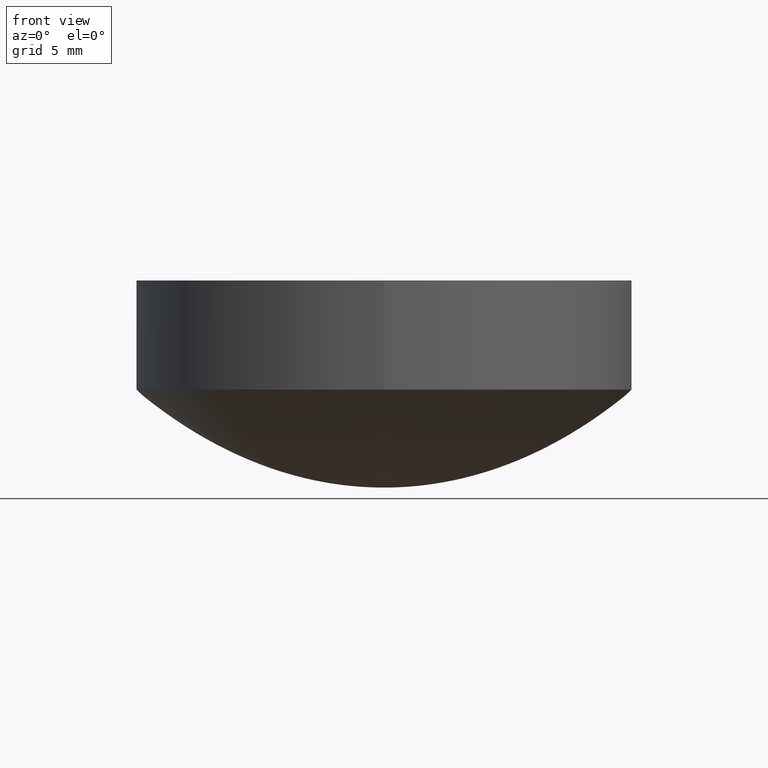
[diagram: clean part render]
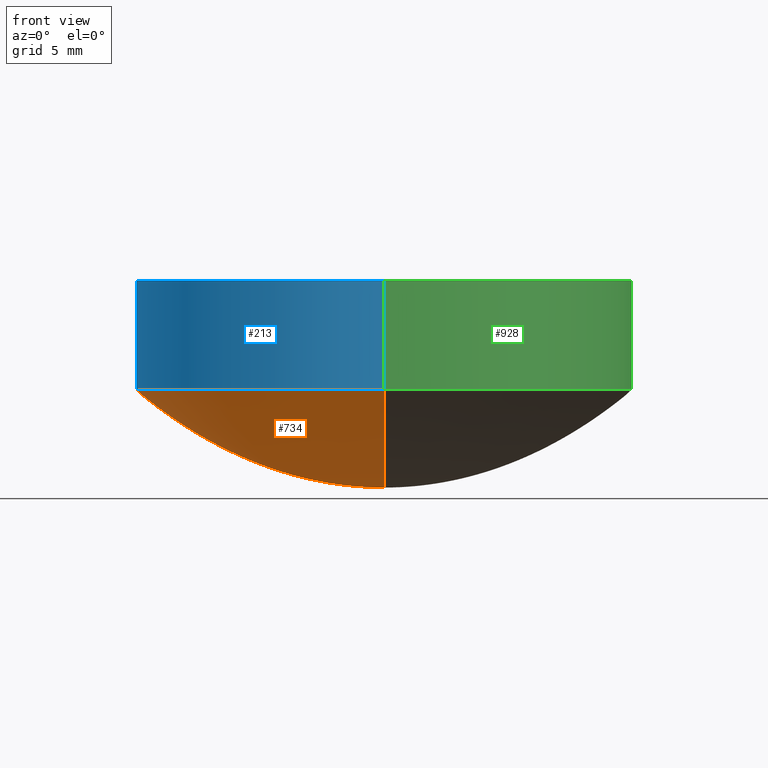
[diagram: same view with three faces highlighted in distinct colors, each labeled with its STEP entity id]
A machine part, front view with three faces highlighted in distinct colors.
Their STEP definitions:

[orange] entity #734 — the highlighted face is a freeform B-spline surface patch.
#1 = CARTESIAN_POINT ( 'NONE',  ( -9.687499999999998224, -4.843749999999999112, 0.5841957991893280688 ) ) ;
#5 = CARTESIAN_POINT ( 'NONE',  ( 0.000000000000000000, 3.906250000000000000, 0.3789155898487329699 ) ) ;
#6 = CARTESIAN_POINT ( 'NONE',  ( 0.000000000000000000, 14.37500000000000000, 5.404119466681040151 ) ) ;
#10 = CARTESIAN_POINT ( 'NONE',  ( -12.81249999999999467, -6.406249999999997335, 1.027049538622569758 ) ) ;
#11 = CARTESIAN_POINT ( 'NONE',  ( -1.817835092484352222E-15, -14.84375000000000000, 5.783048222013719375 ) ) ;
#14 = CARTESIAN_POINT ( 'NONE',  ( -8.228095681771279600E-16, -6.718750000000000000, 1.130971694467530098 ) ) ;
#15 = CARTESIAN_POINT ( 'NONE',  ( 0.000000000000000000, 3.593750000000000000, 0.3204237037430899826 ) ) ;
#21 = CARTESIAN_POINT ( 'NONE',  ( -3.124999999999999556, -1.562499999999999778, 0.05991628856594809899 ) ) ;
#22 = CARTESIAN_POINT ( 'NONE',  ( -1.358592542804094825E-15, -11.09375000000000000, 3.148338256961699777 ) ) ;
#27 = CARTESIAN_POINT ( 'NONE',  ( 0.000000000000000000, 0.000000000000000000, 0.000000000000000000 ) ) ;
#29 = CARTESIAN_POINT ( 'NONE',  ( 0.000000000000000000, 13.90625000000000000, 5.039825773088820071 ) ) ;
#35 = CARTESIAN_POINT ( 'NONE',  ( -5.312500000000000000, 2.656250000000000000, 0.1745099211040110065 ) ) ;
#36 = CARTESIAN_POINT ( 'NONE',  ( 0.000000000000000000, 12.81250000000000000, 4.245381271204740514 ) ) ;
#39 = CARTESIAN_POINT ( 'NONE',  ( -24.06249999999998934, -12.03124999999999467, 3.724266490961300136 ) ) ;
#44 = CARTESIAN_POINT ( 'NONE',  ( 0.000000000000000000, 2.500000000000000000, 0.1544825556000629929 ) ) ;
#45 = CARTESIAN_POINT ( 'NONE',  ( 0.000000000000000000, 11.56250000000000000, 3.429657426633299977 ) ) ;
#51 = CARTESIAN_POINT ( 'NONE',  ( -14.37500000000000000, -7.187499999999998224, 1.296588552126309857 ) ) ;
#52 = CARTESIAN_POINT ( 'NONE',  ( -1.760429773774320121E-15, -14.37500000000000000, 5.404119466681040151 ) ) ;
#53 = CARTESIAN_POINT ( 'NONE',  ( -9.567553118338697255E-16, -7.812500000000000000, 1.535767496166519974 ) ) ;
#54 = CARTESIAN_POINT ( 'NONE',  ( 0.000000000000000000, 9.687500000000000000, 2.382193981824380025 ) ) ;
#55 = CARTESIAN_POINT ( 'NONE',  ( -1.358592542804094825E-15, -11.09375000000000000, 3.148338256961699777 ) ) ;
#56 = CARTESIAN_POINT ( 'NONE',  ( -19.37499999999999645, -9.687499999999998224, 2.382193981824380025 ) ) ;
#58 = ORIENTED_EDGE ( 'NONE', *, *, #955, .F. ) ;
#62 = CARTESIAN_POINT ( 'NONE',  ( -2.678914873134835310E-16, -2.187500000000000000, 0.1180878847321280012 ) ) ;
#64 = CARTESIAN_POINT ( 'NONE',  ( -14.68749999999999822, 7.343750000000000000, 1.354404919990950029 ) ) ;
#66 = CARTESIAN_POINT ( 'NONE',  ( 0.000000000000000000, 13.43750000000000000, 4.689925512592259871 ) ) ;
#69 = CARTESIAN_POINT ( 'NONE',  ( -9.950255243072246565E-16, -8.125000000000000000, 1.663313903924069859 ) ) ;
#71 = CARTESIAN_POINT ( 'NONE',  ( -1.052430843017256757E-15, -8.593750000000000000, 1.864680354000979756 ) ) ;
#78 = CARTESIAN_POINT ( 'NONE',  ( -7.187499999999998224, 3.593750000000000000, 0.3204237037430899826 ) ) ;
#80 = CARTESIAN_POINT ( 'NONE',  ( 0.000000000000000000, 12.81250000000000000, 4.245381271204740514 ) ) ;
#85 = CARTESIAN_POINT ( 'NONE',  ( -6.249999999999999112, -3.124999999999999556, 0.2419397072312180208 ) ) ;
#86 = CARTESIAN_POINT ( 'NONE',  ( 0.000000000000000000, 3.125000000000000000, 0.2419397072312180208 ) ) ;
#90 = CARTESIAN_POINT ( 'NONE',  ( -10.93749999999999822, -5.468749999999998224, 0.7461025201455739886 ) ) ;
#93 = CARTESIAN_POINT ( 'NONE',  ( -4.401074434435800303E-16, -3.593750000000000000, 0.3204237037430899826 ) ) ;
#99 = CARTESIAN_POINT ( 'NONE',  ( 0.000000000000000000, 4.375000000000000000, 0.4759476878725200089 ) ) ;
#104 = CARTESIAN_POINT ( 'NONE',  ( -3.635670184968705134E-16, -2.968750000000000000, 0.2182384972824339964 ) ) ;
#106 = FACE_OUTER_BOUND ( 'NONE', #226, .T. ) ;
#110 = CARTESIAN_POINT ( 'NONE',  ( -1.249999999999999778, -0.6249999999999998890, 0.009073437160893050787 ) ) ;
#112 = CARTESIAN_POINT ( 'NONE',  ( 0.000000000000000000, 13.75000000000000000, 4.921610680584799447 ) ) ;
#116 = CARTESIAN_POINT ( 'NONE',  ( -1.741294667537642754E-15, -14.21875000000000000, 5.281080162096809971 ) ) ;
#121 = CARTESIAN_POINT ( 'NONE',  ( 0.000000000000000000, 11.40625000000000000, 3.334422507651929823 ) ) ;
#125 = CARTESIAN_POINT ( 'NONE',  ( -4.062499999999999112, 2.031250000000000000, 0.1017205799872320099 ) ) ;
#126 = CARTESIAN_POINT ( 'NONE',  ( 0.000000000000000000, 12.34375000000000000, 3.928162119119019913 ) ) ;
#129 = CARTESIAN_POINT ( 'NONE',  ( -8.802148868871600606E-16, -7.187500000000000000, 1.296588552126309857 ) ) ;
#130 = CARTESIAN_POINT ( 'NONE',  ( 0.000000000000000000, 8.593750000000000000, 1.864680354000979756 ) ) ;
#132 = CARTESIAN_POINT ( 'NONE',  ( -1.243781905384030821E-15, -10.15625000000000000, 2.624790582178630149 ) ) ;
#133 = CARTESIAN_POINT ( 'NONE',  ( -1.282052117857385357E-15, -10.46875000000000000, 2.793584604150720185 ) ) ;
#134 = CARTESIAN_POINT ( 'NONE',  ( 0.000000000000000000, 13.75000000000000000, 4.921610680584799447 ) ) ;
#135 = CARTESIAN_POINT ( 'NONE',  ( -1.626484030117578356E-15, -13.28125000000000000, 4.576455430452989859 ) ) ;
#136 = CARTESIAN_POINT ( 'NONE',  ( -8.993499931238374275E-16, -7.343750000000000000, 1.354404919990950029 ) ) ;
#138 = CARTESIAN_POINT ( 'NONE',  ( 0.000000000000000000, 14.84375000000000000, 5.783048222013719375 ) ) ;
#141 = CARTESIAN_POINT ( 'NONE',  ( -3.827021247335478803E-16, -3.125000000000000000, 0.2419397072312180208 ) ) ;
#142 = CARTESIAN_POINT ( 'NONE',  ( -17.18749999999999645, -8.593749999999998224, 1.864680354000979978 ) ) ;
#149 = CARTESIAN_POINT ( 'NONE',  ( -1.282052117857385357E-15, -10.46875000000000000, 2.793584604150720185 ) ) ;
#151 = CARTESIAN_POINT ( 'NONE',  ( 0.000000000000000000, 9.062500000000000000, 2.078235659220740050 ) ) ;
#153 = CARTESIAN_POINT ( 'NONE',  ( 0.000000000000000000, 13.90625000000000000, 5.039825773088820071 ) ) ;
#157 = CARTESIAN_POINT ( 'NONE',  ( -7.845393557037731275E-16, -6.406250000000000000, 1.027049538622569980 ) ) ;
#162 = CARTESIAN_POINT ( 'NONE',  ( -6.874999999999997335, 3.437499999999999556, 0.2930323108724959824 ) ) ;
#163 = CARTESIAN_POINT ( 'NONE',  ( -29.37499999999999645, -14.68749999999999822, 5.655103491778290525 ) ) ;
#168 = CARTESIAN_POINT ( 'NONE',  ( -4.209723372069026634E-16, -3.437500000000000000, 0.2930323108724959824 ) ) ;
#169 = CARTESIAN_POINT ( 'NONE',  ( 0.000000000000000000, 4.531250000000000000, 0.5107788002609389144 ) ) ;
#172 = CARTESIAN_POINT ( 'NONE',  ( 0.000000000000000000, 5.468750000000000000, 0.7461025201455739886 ) ) ;
#174 = CARTESIAN_POINT ( 'NONE',  ( 0.000000000000000000, 4.843750000000000000, 0.5841957991893280688 ) ) ;
#177 = CARTESIAN_POINT ( 'NONE',  ( -7.654042494670957853E-17, -0.6250000000000000000, 0.009073437160893050787 ) ) ;
#179 = CARTESIAN_POINT ( 'NONE',  ( 0.000000000000000000, 5.312500000000000000, 0.7037350457089810440 ) ) ;
#180 = CARTESIAN_POINT ( 'NONE',  ( 0.000000000000000000, 2.656250000000000000, 0.1745099211040110065 ) ) ;
#183 = EDGE_CURVE ( 'NONE', #960, #703, #606, .T. ) ;
#185 = CARTESIAN_POINT ( 'NONE',  ( -0.6249999999999998890, 0.3125000000000000000, 0.001814438714157010036 ) ) ;
#190 = CARTESIAN_POINT ( 'NONE',  ( -1.562499999999999778, 0.7812500000000002220, 0.01451799676346220147 ) ) ;
#191 = CARTESIAN_POINT ( 'NONE',  ( -27.49999999999998934, 13.74999999999999822, 4.921610680584799447 ) ) ;
#194 = DIRECTION ( 'NONE',  ( 0.000000000000000000, 0.000000000000000000, 1.000000000000000000 ) ) ;
#195 = CARTESIAN_POINT ( 'NONE',  ( -25.62499999999998934, 12.81249999999999822, 4.245381271204740514 ) ) ;
#202 = CARTESIAN_POINT ( 'NONE',  ( 0.000000000000000000, 12.03125000000000000, 3.724266490961300136 ) ) ;
#203 = CIRCLE ( 'NONE', #813, 15.00000000000000000 ) ;
#206 = CARTESIAN_POINT ( 'NONE',  ( -1.339457436567417655E-16, -1.093750000000000000, 0.02904096944840869887 ) ) ;
#207 = CARTESIAN_POINT ( 'NONE',  ( -21.87499999999999645, -10.93749999999999645, 3.057488923424939831 ) ) ;
#210 = CARTESIAN_POINT ( 'NONE',  ( -3.252968060235156810E-16, -2.656250000000000000, 0.1745099211040110065 ) ) ;
#211 = CARTESIAN_POINT ( 'NONE',  ( -1.588213817644223622E-15, -12.96875000000000000, 4.354183312459039890 ) ) ;
#214 = CARTESIAN_POINT ( 'NONE',  ( -1.683889348827610654E-15, -13.75000000000000000, 4.921610680584799447 ) ) ;
#215 = CARTESIAN_POINT ( 'NONE',  ( -1.224646799147353256E-15, -10.00000000000000000, 2.542524052966009585 ) ) ;
#217 = CARTESIAN_POINT ( 'NONE',  ( 0.000000000000000000, 13.28125000000000000, 4.576455430452989859 ) ) ;
#218 = CARTESIAN_POINT ( 'NONE',  ( -8.228095681771279600E-16, -6.718750000000000000, 1.130971694467530098 ) ) ;
#219 = CARTESIAN_POINT ( 'NONE',  ( -15.62499999999999822, -7.812499999999999112, 1.535767496166519974 ) ) ;
#220 = CARTESIAN_POINT ( 'NONE',  ( 0.000000000000000000, 6.406250000000000000, 1.027049538622569980 ) ) ;
#223 = CARTESIAN_POINT ( 'NONE',  ( -4.975127621536123282E-16, -4.062500000000000000, 0.4100160821757170559 ) ) ;
#224 = CARTESIAN_POINT ( 'NONE',  ( -13.43749999999999645, 6.718750000000000000, 1.130971694467529876 ) ) ;
#226 = EDGE_LOOP ( 'NONE', ( #58, #1068, #1053 ) ) ;
#230 = CARTESIAN_POINT ( 'NONE',  ( -1.014160630543902023E-15, -8.281250000000000000, 1.729087207217520072 ) ) ;
#232 = CARTESIAN_POINT ( 'NONE',  ( -19.06249999999999645, 9.531250000000000000, 2.304130439600900360 ) ) ;
#234 = CARTESIAN_POINT ( 'NONE',  ( 0.000000000000000000, 7.656250000000000000, 1.473994392457079750 ) ) ;
#238 = CARTESIAN_POINT ( 'NONE',  ( 0.000000000000000000, 7.812500000000000000, 1.535767496166519974 ) ) ;
#245 = CARTESIAN_POINT ( 'NONE',  ( 0.000000000000000000, 6.406250000000000000, 1.027049538622569980 ) ) ;
#246 = CARTESIAN_POINT ( 'NONE',  ( 0.000000000000000000, 1.718750000000000000, 0.07263478165185099922 ) ) ;
#250 = CARTESIAN_POINT ( 'NONE',  ( -6.874999999999997335, -3.437499999999998668, 0.2930323108724959824 ) ) ;
#251 = CARTESIAN_POINT ( 'NONE',  ( -1.798699986247674855E-15, -14.68750000000000000, 5.655103491778289637 ) ) ;
#255 = CARTESIAN_POINT ( 'NONE',  ( -7.271340369937410268E-16, -5.937500000000000000, 0.8808271430678310532 ) ) ;
#256 = CARTESIAN_POINT ( 'NONE',  ( 0.000000000000000000, 2.500000000000000000, 0.1544825556000629929 ) ) ;
#260 = CARTESIAN_POINT ( 'NONE',  ( -12.81249999999999467, 6.406249999999999112, 1.027049538622569758 ) ) ;
#261 = CARTESIAN_POINT ( 'NONE',  ( -28.43749999999999645, 14.21875000000000000, 5.281080162096809971 ) ) ;
#265 = CARTESIAN_POINT ( 'NONE',  ( -7.812499999999999112, -3.906249999999999556, 0.3789155898487330254 ) ) ;
#266 = CARTESIAN_POINT ( 'NONE',  ( 0.000000000000000000, 0.1562500000000000000, 0.000000000000000000 ) ) ;
#271 = CARTESIAN_POINT ( 'NONE',  ( -2.187500000000000000, 1.093750000000000222, 0.02904096944840870234 ) ) ;
#272 = CARTESIAN_POINT ( 'NONE',  ( -23.74999999999999289, -11.87499999999999645, 3.624579417023470196 ) ) ;
#275 = CARTESIAN_POINT ( 'NONE',  ( 0.000000000000000000, 0.3125000000000000000, 0.001814438714157010036 ) ) ;
#276 = CARTESIAN_POINT ( 'NONE',  ( -1.396862755277449756E-15, -11.40625000000000000, 3.334422507651929823 ) ) ;
#280 = CARTESIAN_POINT ( 'NONE',  ( -2.487563810768061641E-16, -2.031250000000000000, 0.1017205799872320099 ) ) ;
#281 = CARTESIAN_POINT ( 'NONE',  ( -1.626484030117578356E-15, -13.28125000000000000, 4.576455430452989859 ) ) ;
#285 = CARTESIAN_POINT ( 'NONE',  ( -3.061616997868383141E-16, -2.500000000000000000, 0.1544825556000629929 ) ) ;
#287 = CARTESIAN_POINT ( 'NONE',  ( 0.000000000000000000, 13.43750000000000000, 4.689925512592259871 ) ) ;
#292 = CARTESIAN_POINT ( 'NONE',  ( -1.186376586673998523E-15, -9.687500000000000000, 2.382193981824380025 ) ) ;
#293 = CARTESIAN_POINT ( 'NONE',  ( -25.62499999999998934, -12.81249999999999467, 4.245381271204740514 ) ) ;
#295 = CARTESIAN_POINT ( 'NONE',  ( -1.396862755277449756E-15, -11.40625000000000000, 3.334422507651929823 ) ) ;
#296 = CARTESIAN_POINT ( 'NONE',  ( -17.18749999999999645, 8.593750000000000000, 1.864680354000979978 ) ) ;
#298 = CARTESIAN_POINT ( 'NONE',  ( 0.000000000000000000, 11.56250000000000000, 3.429657426633299977 ) ) ;
#299 = CARTESIAN_POINT ( 'NONE',  ( -1.052430843017256757E-15, -8.593750000000000000, 1.864680354000979756 ) ) ;
#300 = CARTESIAN_POINT ( 'NONE',  ( -1.128971267963966225E-15, -9.218750000000000000, 2.152151278271710044 ) ) ;
#302 = CARTESIAN_POINT ( 'NONE',  ( 0.000000000000000000, 7.187500000000000000, 1.296588552126309857 ) ) ;
#304 = CARTESIAN_POINT ( 'NONE',  ( -1.167241480437320959E-15, -9.531250000000000000, 2.304130439600899916 ) ) ;
#305 = CARTESIAN_POINT ( 'NONE',  ( -20.93749999999999645, -10.46874999999999822, 2.793584604150720629 ) ) ;
#307 = CARTESIAN_POINT ( 'NONE',  ( 0.000000000000000000, 10.62500000000000000, 2.880112097631259971 ) ) ;
#310 = CARTESIAN_POINT ( 'NONE',  ( -7.654042494670957606E-16, -6.250000000000000000, 0.9770276282365498721 ) ) ;
#311 = CARTESIAN_POINT ( 'NONE',  ( -1.109836161727288661E-15, -9.062500000000000000, 2.078235659220740050 ) ) ;
#318 = CARTESIAN_POINT ( 'NONE',  ( -16.24999999999999645, 8.125000000000000000, 1.663313903924069859 ) ) ;
#319 = CARTESIAN_POINT ( 'NONE',  ( 0.000000000000000000, 9.062500000000000000, 2.078235659220740050 ) ) ;
#325 = CARTESIAN_POINT ( 'NONE',  ( -7.187500000000000000, -3.593749999999999112, 0.3204237037430899826 ) ) ;
#327 = CARTESIAN_POINT ( 'NONE',  ( -29.68749999999999289, -14.84374999999999467, 5.783048222013719375 ) ) ;
#332 = CARTESIAN_POINT ( 'NONE',  ( -5.931882933369992613E-16, -4.843750000000000000, 0.5841957991893280688 ) ) ;
#333 = CARTESIAN_POINT ( 'NONE',  ( 0.000000000000000000, 15.00000000000000000, 5.913487138830709533 ) ) ;
#336 = CARTESIAN_POINT ( 'NONE',  ( -10.93749999999999822, 5.468750000000000000, 0.7461025201455739886 ) ) ;
#337 = CARTESIAN_POINT ( 'NONE',  ( -28.75000000000000000, -14.37499999999999645, 5.404119466681040151 ) ) ;
#344 = CARTESIAN_POINT ( 'NONE',  ( 0.000000000000000000, 5.781250000000000000, 0.8346485693713959764 ) ) ;
#345 = CARTESIAN_POINT ( 'NONE',  ( 0.000000000000000000, 14.21875000000000000, 5.281080162096809971 ) ) ;
#350 = CARTESIAN_POINT ( 'NONE',  ( -8.124999999999998224, 4.062500000000000000, 0.4100160821757170559 ) ) ;
#351 = CARTESIAN_POINT ( 'NONE',  ( 0.000000000000000000, 0.3125000000000000000, 0.001814438714157010036 ) ) ;
#355 = CARTESIAN_POINT ( 'NONE',  ( -1.562499999999999778, -0.7812499999999998890, 0.01451799676346220147 ) ) ;
#356 = CARTESIAN_POINT ( 'NONE',  ( 0.000000000000000000, 12.96875000000000000, 4.354183312459039890 ) ) ;
#362 = CARTESIAN_POINT ( 'NONE',  ( 0.000000000000000000, 0.000000000000000000, 0.000000000000000000 ) ) ;
#363 = CARTESIAN_POINT ( 'NONE',  ( -23.12499999999999645, 11.56250000000000000, 3.429657426633299533 ) ) ;
#366 = CARTESIAN_POINT ( 'NONE',  ( 0.000000000000000000, 2.031250000000000000, 0.1017205799872320099 ) ) ;
#367 = CARTESIAN_POINT ( 'NONE',  ( -1.569078711407546255E-15, -12.81250000000000000, 4.245381271204740514 ) ) ;
#373 = CARTESIAN_POINT ( 'NONE',  ( 0.000000000000000000, 10.93750000000000000, 3.057488923424939831 ) ) ;
#375 = CARTESIAN_POINT ( 'NONE',  ( -2.678914873134835310E-16, -2.187500000000000000, 0.1180878847321280012 ) ) ;
#378 = CARTESIAN_POINT ( 'NONE',  ( 0.000000000000000000, 10.62500000000000000, 2.880112097631259971 ) ) ;
#381 = CARTESIAN_POINT ( 'NONE',  ( -4.401074434435800303E-16, -3.593750000000000000, 0.3204237037430899826 ) ) ;
#382 = CARTESIAN_POINT ( 'NONE',  ( 0.000000000000000000, 8.750000000000000000, 1.934500196912620096 ) ) ;
#383 = CARTESIAN_POINT ( 'NONE',  ( -1.511673392697514154E-15, -12.34375000000000000, 3.928162119119019913 ) ) ;
#384 = CARTESIAN_POINT ( 'NONE',  ( -8.802148868871600606E-16, -7.187500000000000000, 1.296588552126309857 ) ) ;
#386 = CARTESIAN_POINT ( 'NONE',  ( 0.000000000000000000, 8.281250000000000000, 1.729087207217520072 ) ) ;
#388 = CARTESIAN_POINT ( 'NONE',  ( -7.845393557037731275E-16, -6.406250000000000000, 1.027049538622569980 ) ) ;
#389 = CARTESIAN_POINT ( 'NONE',  ( 0.000000000000000000, 6.718750000000000000, 1.130971694467530098 ) ) ;
#397 = CARTESIAN_POINT ( 'NONE',  ( -1.109836161727288661E-15, -9.062500000000000000, 2.078235659220740050 ) ) ;
#398 = CARTESIAN_POINT ( 'NONE',  ( -20.31250000000000000, 10.15625000000000000, 2.624790582178630149 ) ) ;
#400 = CARTESIAN_POINT ( 'NONE',  ( 0.000000000000000000, 12.34375000000000000, 3.928162119119019913 ) ) ;
#403 = CARTESIAN_POINT ( 'NONE',  ( -1.817835092484352222E-15, -14.84375000000000000, 5.783048222013719375 ) ) ;
#404 = CARTESIAN_POINT ( 'NONE',  ( -9.376202055971923586E-16, -7.656250000000000000, 1.473994392457079750 ) ) ;
#411 = CARTESIAN_POINT ( 'NONE',  ( -7.079989307570635613E-16, -5.781250000000000000, 0.8346485693713959764 ) ) ;
#413 = CARTESIAN_POINT ( 'NONE',  ( 0.000000000000000000, 11.87500000000000000, 3.624579417023469752 ) ) ;
#418 = CARTESIAN_POINT ( 'NONE',  ( -3.827021247335478803E-16, -3.125000000000000000, 0.2419397072312180208 ) ) ;
#419 = CARTESIAN_POINT ( 'NONE',  ( 0.000000000000000000, 2.968750000000000000, 0.2182384972824339964 ) ) ;
#422 = CARTESIAN_POINT ( 'NONE',  ( -8.124999999999998224, -4.062499999999999112, 0.4100160821757170559 ) ) ;
#423 = CARTESIAN_POINT ( 'NONE',  ( 0.000000000000000000, 0.000000000000000000, 0.000000000000000000 ) ) ;
#426 = CARTESIAN_POINT ( 'NONE',  ( 0.000000000000000000, 3.125000000000000000, 0.2419397072312180208 ) ) ;
#427 = CARTESIAN_POINT ( 'NONE',  ( -1.836970198721029589E-15, -15.00000000000000000, 5.913487138830709533 ) ) ;
#430 = CARTESIAN_POINT ( 'NONE',  ( 0.000000000000000000, 4.062500000000000000, 0.4100160821757170559 ) ) ;
#434 = CARTESIAN_POINT ( 'NONE',  ( -0.3124999999999999445, 0.1562500000000000000, 0.000000000000000000 ) ) ;
#435 = CARTESIAN_POINT ( 'NONE',  ( -1.703024455064288218E-15, -13.90625000000000000, 5.039825773088820071 ) ) ;
#438 = CARTESIAN_POINT ( 'NONE',  ( -0.3124999999999999445, -0.1562499999999999722, 0.000000000000000000 ) ) ;
#439 = CARTESIAN_POINT ( 'NONE',  ( -26.56249999999998934, 13.28124999999999822, 4.576455430452990747 ) ) ;
#442 = CARTESIAN_POINT ( 'NONE',  ( -4.999999999999999112, -2.499999999999999556, 0.1544825556000629929 ) ) ;
#443 = CARTESIAN_POINT ( 'NONE',  ( -24.99999999999999645, -12.49999999999999822, 4.032370676684720046 ) ) ;
#448 = CARTESIAN_POINT ( 'NONE',  ( 0.000000000000000000, 13.28125000000000000, 4.576455430452989859 ) ) ;
#453 = CARTESIAN_POINT ( 'NONE',  ( -9.567553118338697008E-17, -0.7812500000000000000, 0.01451799676346219974 ) ) ;
#454 = CARTESIAN_POINT ( 'NONE',  ( -21.25000000000000000, -10.62499999999999822, 2.880112097631259971 ) ) ;
#456 = VERTEX_POINT ( 'NONE', #666 ) ;
#457 = CARTESIAN_POINT ( 'NONE',  ( -1.645619136354255920E-15, -13.43750000000000000, 4.689925512592259871 ) ) ;
#460 = CARTESIAN_POINT ( 'NONE',  ( -14.37499999999999645, 7.187500000000000000, 1.296588552126309857 ) ) ;
#463 = CARTESIAN_POINT ( 'NONE',  ( -1.014160630543902023E-15, -8.281250000000000000, 1.729087207217520072 ) ) ;
#465 = CARTESIAN_POINT ( 'NONE',  ( 0.000000000000000000, 8.750000000000000000, 1.934500196912620096 ) ) ;
#466 = CARTESIAN_POINT ( 'NONE',  ( -1.415997861514127123E-15, -11.56250000000000000, 3.429657426633299977 ) ) ;
#467 = CARTESIAN_POINT ( 'NONE',  ( -13.74999999999999467, -6.874999999999997335, 1.184871938868480079 ) ) ;
#472 = CARTESIAN_POINT ( 'NONE',  ( -5.357829746269670620E-16, -4.375000000000000000, 0.4759476878725200089 ) ) ;
#474 = CARTESIAN_POINT ( 'NONE',  ( 0.000000000000000000, 8.281250000000000000, 1.729087207217520072 ) ) ;
#480 = CARTESIAN_POINT ( 'NONE',  ( -1.741294667537642754E-15, -14.21875000000000000, 5.281080162096809971 ) ) ;
#482 = CARTESIAN_POINT ( 'NONE',  ( 0.000000000000000000, 7.187500000000000000, 1.296588552126309857 ) ) ;
#489 = CARTESIAN_POINT ( 'NONE',  ( 0.000000000000000000, 3.437500000000000000, 0.2930323108724959824 ) ) ;
#495 = CARTESIAN_POINT ( 'NONE',  ( 0.000000000000000000, 5.000000000000000000, 0.6227816846932039407 ) ) ;
#496 = CARTESIAN_POINT ( 'NONE',  ( 0.000000000000000000, 0.6250000000000000000, 0.009073437160893050787 ) ) ;
#501 = CARTESIAN_POINT ( 'NONE',  ( -5.937499999999998224, 2.968750000000000000, 0.2182384972824339686 ) ) ;
#502 = CARTESIAN_POINT ( 'NONE',  ( 0.000000000000000000, 0.7812500000000000000, 0.01451799676346219974 ) ) ;
#505 = CARTESIAN_POINT ( 'NONE',  ( -8.750000000000000000, 4.375000000000000888, 0.4759476878725200089 ) ) ;
#506 = CARTESIAN_POINT ( 'NONE',  ( 0.000000000000000000, 1.093750000000000000, 0.02904096944840869887 ) ) ;
#510 = CARTESIAN_POINT ( 'NONE',  ( -8.750000000000000000, -4.375000000000000000, 0.4759476878725200089 ) ) ;
#511 = CARTESIAN_POINT ( 'NONE',  ( 0.000000000000000000, 0.000000000000000000, 0.000000000000000000 ) ) ;
#515 = CARTESIAN_POINT ( 'NONE',  ( -3.827021247335478926E-17, -0.3125000000000000000, 0.001814438714157010036 ) ) ;
#522 = CARTESIAN_POINT ( 'NONE',  ( 0.000000000000000000, 2.187500000000000000, 0.1180878847321280012 ) ) ;
#525 = CARTESIAN_POINT ( 'NONE',  ( -27.81249999999999289, -13.90624999999999645, 5.039825773088820071 ) ) ;
#528 = DIRECTION ( 'NONE',  ( 0.000000000000000000, 1.000000000000000000, 0.000000000000000000 ) ) ;
#529 = CARTESIAN_POINT ( 'NONE',  ( -23.12499999999999645, -11.56249999999999645, 3.429657426633299533 ) ) ;
#534 = CARTESIAN_POINT ( 'NONE',  ( -2.187500000000000000, -1.093750000000000000, 0.02904096944840870234 ) ) ;
#535 = CARTESIAN_POINT ( 'NONE',  ( -28.43749999999999645, -14.21874999999999822, 5.281080162096809971 ) ) ;
#538 = CARTESIAN_POINT ( 'NONE',  ( -4.999999999999999112, 2.500000000000000000, 0.1544825556000629929 ) ) ;
#539 = CARTESIAN_POINT ( 'NONE',  ( -24.68749999999999645, -12.34374999999999822, 3.928162119119019913 ) ) ;
#542 = CARTESIAN_POINT ( 'NONE',  ( 1.836970198721029589E-15, -15.00000000000000000, 5.913487138830709533 ) ) ;
#543 = CARTESIAN_POINT ( 'NONE',  ( -22.81249999999999289, 11.40625000000000000, 3.334422507651929823 ) ) ;
#544 = CARTESIAN_POINT ( 'NONE',  ( -1.339457436567417655E-16, -1.093750000000000000, 0.02904096944840869887 ) ) ;
#545 = CARTESIAN_POINT ( 'NONE',  ( -16.56249999999999645, -8.281249999999998224, 1.729087207217519850 ) ) ;
#548 = CARTESIAN_POINT ( 'NONE',  ( -1.588213817644223622E-15, -12.96875000000000000, 4.354183312459039890 ) ) ;
#549 = CARTESIAN_POINT ( 'NONE',  ( 0.000000000000000000, 10.00000000000000000, 2.542524052966009585 ) ) ;
#553 = CARTESIAN_POINT ( 'NONE',  ( -1.798699986247674855E-15, -14.68750000000000000, 5.655103491778289637 ) ) ;
#554 = CARTESIAN_POINT ( 'NONE',  ( -1.071565949253934124E-15, -8.750000000000000000, 1.934500196912620096 ) ) ;
#560 = CARTESIAN_POINT ( 'NONE',  ( -1.569078711407546255E-15, -12.81250000000000000, 4.245381271204740514 ) ) ;
#562 = CARTESIAN_POINT ( 'NONE',  ( -14.68749999999999822, -7.343749999999999112, 1.354404919990950029 ) ) ;
#564 = CARTESIAN_POINT ( 'NONE',  ( 0.000000000000000000, 7.343750000000000000, 1.354404919990950029 ) ) ;
#568 = CARTESIAN_POINT ( 'NONE',  ( -19.99999999999999645, 10.00000000000000000, 2.542524052966009585 ) ) ;
#574 = CARTESIAN_POINT ( 'NONE',  ( 0.000000000000000000, 6.250000000000000000, 0.9770276282365498721 ) ) ;
#579 = CARTESIAN_POINT ( 'NONE',  ( -6.505936120470313620E-16, -5.312500000000000000, 0.7037350457089810440 ) ) ;
#580 = CARTESIAN_POINT ( 'NONE',  ( 0.000000000000000000, 5.937500000000000000, 0.8808271430678310532 ) ) ;
#584 = CARTESIAN_POINT ( 'NONE',  ( -3.827021247335478926E-17, -0.3125000000000000000, 0.001814438714157010036 ) ) ;
#585 = CARTESIAN_POINT ( 'NONE',  ( -10.62500000000000000, 5.312500000000000000, 0.7037350457089809330 ) ) ;
#590 = CARTESIAN_POINT ( 'NONE',  ( -11.87499999999999645, -5.937499999999998224, 0.8808271430678311642 ) ) ;
#591 = CARTESIAN_POINT ( 'NONE',  ( 0.000000000000000000, 3.437500000000000000, 0.2930323108724959824 ) ) ;
#595 = CARTESIAN_POINT ( 'NONE',  ( 0.000000000000000000, 0.6250000000000000000, 0.009073437160893050787 ) ) ;
#597 = CARTESIAN_POINT ( 'NONE',  ( 0.000000000000000000, 2.187500000000000000, 0.1180878847321280012 ) ) ;
#602 = CARTESIAN_POINT ( 'NONE',  ( -4.375000000000000000, 2.187500000000000444, 0.1180878847321280012 ) ) ;
#603 = CARTESIAN_POINT ( 'NONE',  ( -26.87499999999999289, -13.43749999999999645, 4.689925512592259871 ) ) ;
#606 = B_SPLINE_CURVE_WITH_KNOTS ( 'NONE', 3,
 ( #802, #138, #729, #827, #900, #153, #134, #66, #217, #630, #80, #741, #400, #885, #413, #298, #647, #1062, #1074, #307, #641, #882, #976, #54, #988, #735, #319, #465, #654, #386, #1057, #982, #234, #564, #302, #636, #970, #220, #931, #580, #997, #1012, #849, #1008, #174, #169, #1018, #660, #1002, #15, #591, #86, #419, #180, #256, #597, #834, #246, #839, #936, #506, #502, #496, #351, #266, #511 ),
 .UNSPECIFIED., .F., .F.,
 ( 4, 2, 2, 2, 2, 2, 2, 2, 2, 2, 2, 2, 2, 2, 2, 2, 2, 2, 2, 2, 2, 2, 2, 2, 2, 2, 2, 2, 2, 2, 2, 2, 4 ),
 ( -1.000000000000000000, -0.9687500000000000000, -0.9375000000000000000, -0.9062500000000000000, -0.8750000000000000000, -0.8437500000000000000, -0.8125000000000000000, -0.7812500000000000000, -0.7500000000000000000, -0.7187500000000000000, -0.6875000000000000000, -0.6562500000000000000, -0.6250000000000000000, -0.5937500000000000000, -0.5625000000000000000, -0.5312500000000000000, -0.5000000000000000000, -0.4687500000000000000, -0.4375000000000000000, -0.4062500000000000000, -0.3750000000000000000, -0.3437500000000000000, -0.3125000000000000000, -0.2812500000000000000, -0.2500000000000000000, -0.2187500000000000000, -0.1875000000000000000, -0.1562500000000000000, -0.1250000000000000000, -0.09375000000000000000, -0.06250000000000000000, -0.03125000000000000000, 0.000000000000000000 ),
 .UNSPECIFIED. ) ;
#609 = CARTESIAN_POINT ( 'NONE',  ( 0.000000000000000000, 0.7812500000000000000, 0.01451799676346219974 ) ) ;
#610 = CARTESIAN_POINT ( 'NONE',  ( -27.49999999999998934, -13.74999999999999467, 4.921610680584799447 ) ) ;
#613 = CARTESIAN_POINT ( 'NONE',  ( -5.312500000000000000, -2.656249999999999556, 0.1745099211040110065 ) ) ;
#614 = CARTESIAN_POINT ( 'NONE',  ( -1.415997861514127123E-15, -11.56250000000000000, 3.429657426633299977 ) ) ;
#619 = CARTESIAN_POINT ( 'NONE',  ( -3.437499999999998668, 1.718749999999999778, 0.07263478165185099922 ) ) ;
#620 = CARTESIAN_POINT ( 'NONE',  ( -26.87499999999999289, 13.43750000000000000, 4.689925512592259871 ) ) ;
#624 = CARTESIAN_POINT ( 'NONE',  ( -7.271340369937410268E-16, -5.937500000000000000, 0.8808271430678310532 ) ) ;
#625 = CARTESIAN_POINT ( 'NONE',  ( 0.000000000000000000, 11.09375000000000000, 3.148338256961699777 ) ) ;
#627 = CARTESIAN_POINT ( 'NONE',  ( -1.913510623667739402E-16, -1.562500000000000000, 0.05991628856594809899 ) ) ;
#628 = CARTESIAN_POINT ( 'NONE',  ( -17.50000000000000000, 8.750000000000001776, 1.934500196912620096 ) ) ;
#630 = CARTESIAN_POINT ( 'NONE',  ( 0.000000000000000000, 12.96875000000000000, 4.354183312459039890 ) ) ;
#632 = CARTESIAN_POINT ( 'NONE',  ( -9.376202055971923586E-16, -7.656250000000000000, 1.473994392457079750 ) ) ;
#635 = CARTESIAN_POINT ( 'NONE',  ( 0.000000000000000000, 9.687500000000000000, 2.382193981824380025 ) ) ;
#636 = CARTESIAN_POINT ( 'NONE',  ( 0.000000000000000000, 6.875000000000000000, 1.184871938868480079 ) ) ;
#638 = CARTESIAN_POINT ( 'NONE',  ( -9.567553118338697255E-16, -7.812500000000000000, 1.535767496166519974 ) ) ;
#639 = CARTESIAN_POINT ( 'NONE',  ( 0.000000000000000000, 8.125000000000000000, 1.663313903924069859 ) ) ;
#641 = CARTESIAN_POINT ( 'NONE',  ( 0.000000000000000000, 10.46875000000000000, 2.793584604150720185 ) ) ;
#644 = CARTESIAN_POINT ( 'NONE',  ( -6.123233995736766282E-16, -5.000000000000000000, 0.6227816846932039407 ) ) ;
#645 = CARTESIAN_POINT ( 'NONE',  ( -15.31249999999999645, 7.656250000000000888, 1.473994392457079972 ) ) ;
#647 = CARTESIAN_POINT ( 'NONE',  ( 0.000000000000000000, 11.40625000000000000, 3.334422507651929823 ) ) ;
#650 = CARTESIAN_POINT ( 'NONE',  ( 0.000000000000000000, 0.000000000000000000, 0.000000000000000000 ) ) ;
#651 = CARTESIAN_POINT ( 'NONE',  ( -18.12499999999999645, 9.062500000000000000, 2.078235659220740050 ) ) ;
#654 = CARTESIAN_POINT ( 'NONE',  ( 0.000000000000000000, 8.593750000000000000, 1.864680354000979756 ) ) ;
#658 = CARTESIAN_POINT ( 'NONE',  ( -9.687499999999998224, 4.843750000000000000, 0.5841957991893280688 ) ) ;
#660 = CARTESIAN_POINT ( 'NONE',  ( 0.000000000000000000, 4.062500000000000000, 0.4100160821757170559 ) ) ;
#665 = CARTESIAN_POINT ( 'NONE',  ( -11.56249999999999822, 5.781250000000000000, 0.8346485693713958653 ) ) ;
#666 = CARTESIAN_POINT ( 'NONE',  ( 1.836970198721029589E-15, -15.00000000000000000, 5.913487138830709533 ) ) ;
#668 = CARTESIAN_POINT ( 'NONE',  ( -9.567553118338697008E-17, -0.7812500000000000000, 0.01451799676346219974 ) ) ;
#669 = CARTESIAN_POINT ( 'NONE',  ( -7.654042494670957606E-16, -6.250000000000000000, 0.9770276282365498721 ) ) ;
#678 = CARTESIAN_POINT ( 'NONE',  ( -9.999999999999998224, 5.000000000000000000, 0.6227816846932039407 ) ) ;
#679 = CARTESIAN_POINT ( 'NONE',  ( -29.99999999999999289, 14.99999999999999822, 5.913487138830709533 ) ) ;
#683 = CARTESIAN_POINT ( 'NONE',  ( -7.812499999999999112, 3.906250000000000000, 0.3789155898487330254 ) ) ;
#689 = CARTESIAN_POINT ( 'NONE',  ( -5.937499999999998224, -2.968749999999999112, 0.2182384972824339686 ) ) ;
#690 = CARTESIAN_POINT ( 'NONE',  ( -21.25000000000000000, 10.62500000000000000, 2.880112097631259971 ) ) ;
#697 = CARTESIAN_POINT ( 'NONE',  ( 0.000000000000000000, 0.000000000000000000, 5.913487138830709533 ) ) ;
#698 = CARTESIAN_POINT ( 'NONE',  ( -22.81249999999999289, -11.40624999999999645, 3.334422507651929823 ) ) ;
#701 = CARTESIAN_POINT ( 'NONE',  ( 0.000000000000000000, 1.718750000000000000, 0.07263478165185099922 ) ) ;
#702 = CARTESIAN_POINT ( 'NONE',  ( -23.74999999999999289, 11.87500000000000000, 3.624579417023470196 ) ) ;
#703 = VERTEX_POINT ( 'NONE', #423 ) ;
#705 = CARTESIAN_POINT ( 'NONE',  ( -3.252968060235156810E-16, -2.656250000000000000, 0.1745099211040110065 ) ) ;
#706 = CARTESIAN_POINT ( 'NONE',  ( -26.56249999999998934, -13.28124999999999467, 4.576455430452990747 ) ) ;
#711 = CARTESIAN_POINT ( 'NONE',  ( -2.104861686034513317E-16, -1.718750000000000000, 0.07263478165185099922 ) ) ;
#712 = CARTESIAN_POINT ( 'NONE',  ( 0.000000000000000000, 10.46875000000000000, 2.793584604150720185 ) ) ;
#714 = CARTESIAN_POINT ( 'NONE',  ( -3.061616997868383141E-16, -2.500000000000000000, 0.1544825556000629929 ) ) ;
#716 = CARTESIAN_POINT ( 'NONE',  ( -9.950255243072246565E-16, -8.125000000000000000, 1.663313903924069859 ) ) ;
#719 = CARTESIAN_POINT ( 'NONE',  ( -1.128971267963966225E-15, -9.218750000000000000, 2.152151278271710044 ) ) ;
#720 = CARTESIAN_POINT ( 'NONE',  ( 0.000000000000000000, 6.875000000000000000, 1.184871938868480079 ) ) ;
#724 = CARTESIAN_POINT ( 'NONE',  ( -8.993499931238374275E-16, -7.343750000000000000, 1.354404919990950029 ) ) ;
#726 = CARTESIAN_POINT ( 'NONE',  ( -18.43749999999999645, 9.218750000000000000, 2.152151278271710044 ) ) ;
#729 = CARTESIAN_POINT ( 'NONE',  ( 0.000000000000000000, 14.68750000000000000, 5.655103491778289637 ) ) ;
#732 = CARTESIAN_POINT ( 'NONE',  ( -7.079989307570635613E-16, -5.781250000000000000, 0.8346485693713959764 ) ) ;
#733 = CARTESIAN_POINT ( 'NONE',  ( -17.50000000000000000, -8.750000000000000000, 1.934500196912620096 ) ) ;
#734 = ADVANCED_FACE ( 'NONE', ( #106 ), #1017, .T. ) ;
#735 = CARTESIAN_POINT ( 'NONE',  ( 0.000000000000000000, 9.218750000000000000, 2.152151278271710044 ) ) ;
#738 = CARTESIAN_POINT ( 'NONE',  ( -1.224646799147353256E-15, -10.00000000000000000, 2.542524052966009585 ) ) ;
#739 = CARTESIAN_POINT ( 'NONE',  ( 0.000000000000000000, 7.656250000000000000, 1.473994392457079750 ) ) ;
#741 = CARTESIAN_POINT ( 'NONE',  ( 0.000000000000000000, 12.50000000000000000, 4.032370676684720046 ) ) ;
#744 = CARTESIAN_POINT ( 'NONE',  ( -1.913510623667739463E-17, -0.1562500000000000000, 0.000000000000000000 ) ) ;
#746 = CARTESIAN_POINT ( 'NONE',  ( -5.357829746269670620E-16, -4.375000000000000000, 0.4759476878725200089 ) ) ;
#749 = CARTESIAN_POINT ( 'NONE',  ( -29.99999999999999645, -14.99999999999999645, 5.913487138830709533 ) ) ;
#754 = CARTESIAN_POINT ( 'NONE',  ( 0.000000000000000000, 3.593750000000000000, 0.3204237037430899826 ) ) ;
#758 = CARTESIAN_POINT ( 'NONE',  ( 0.000000000000000000, 2.968750000000000000, 0.2182384972824339964 ) ) ;
#759 = CARTESIAN_POINT ( 'NONE',  ( -29.37499999999999645, 14.68750000000000000, 5.655103491778290525 ) ) ;
#762 = CARTESIAN_POINT ( 'NONE',  ( 0.000000000000000000, 4.531250000000000000, 0.5107788002609389144 ) ) ;
#764 = CARTESIAN_POINT ( 'NONE',  ( -29.68749999999998934, 14.84375000000000000, 5.783048222013719375 ) ) ;
#769 = CARTESIAN_POINT ( 'NONE',  ( -6.697287182837087289E-16, -5.468750000000000000, 0.7461025201455739886 ) ) ;
#773 = CARTESIAN_POINT ( 'NONE',  ( -4.375000000000000000, -2.187500000000000000, 0.1180878847321280012 ) ) ;
#774 = CARTESIAN_POINT ( 'NONE',  ( -1.511673392697514154E-15, -12.34375000000000000, 3.928162119119019913 ) ) ;
#778 = CARTESIAN_POINT ( 'NONE',  ( -1.913510623667739463E-17, -0.1562500000000000000, 0.000000000000000000 ) ) ;
#779 = CARTESIAN_POINT ( 'NONE',  ( 0.000000000000000000, 11.87500000000000000, 3.624579417023469752 ) ) ;
#786 = CARTESIAN_POINT ( 'NONE',  ( -1.530808498934191521E-15, -12.50000000000000000, 4.032370676684720046 ) ) ;
#789 = CARTESIAN_POINT ( 'NONE',  ( -1.530808498934191571E-16, -1.250000000000000000, 0.03811938227230710075 ) ) ;
#790 = CARTESIAN_POINT ( 'NONE',  ( -22.18749999999999645, -11.09374999999999467, 3.148338256961700221 ) ) ;
#794 = CARTESIAN_POINT ( 'NONE',  ( 0.000000000000000000, 2.656250000000000000, 0.1745099211040110065 ) ) ;
#796 = CARTESIAN_POINT ( 'NONE',  ( -1.301187224094062724E-15, -10.62500000000000000, 2.880112097631259971 ) ) ;
#797 = CARTESIAN_POINT ( 'NONE',  ( -4.783776559169348627E-16, -3.906250000000000000, 0.3789155898487329699 ) ) ;
#798 = CARTESIAN_POINT ( 'NONE',  ( -13.74999999999999467, 6.874999999999999112, 1.184871938868480079 ) ) ;
#799 = EDGE_CURVE ( 'NONE', #960, #456, #203, .T. ) ;
#801 = CARTESIAN_POINT ( 'NONE',  ( -16.24999999999999645, -8.124999999999998224, 1.663313903924069859 ) ) ;
#802 = CARTESIAN_POINT ( 'NONE',  ( 0.000000000000000000, 15.00000000000000000, 5.913487138830709533 ) ) ;
#803 = CARTESIAN_POINT ( 'NONE',  ( -1.703024455064288218E-15, -13.90625000000000000, 5.039825773088820071 ) ) ;
#804 = CARTESIAN_POINT ( 'NONE',  ( -8.419446744138053269E-16, -6.875000000000000000, 1.184871938868480079 ) ) ;
#810 = CARTESIAN_POINT ( 'NONE',  ( -3.635670184968705134E-16, -2.968750000000000000, 0.2182384972824339964 ) ) ;
#812 = CARTESIAN_POINT ( 'NONE',  ( -15.62499999999999822, 7.812500000000000000, 1.535767496166519974 ) ) ;
#813 = AXIS2_PLACEMENT_3D ( 'NONE', #697, #194, #528 ) ;
#818 = CARTESIAN_POINT ( 'NONE',  ( -1.301187224094062724E-15, -10.62500000000000000, 2.880112097631259971 ) ) ;
#819 = CARTESIAN_POINT ( 'NONE',  ( -1.167241480437320959E-15, -9.531250000000000000, 2.304130439600899916 ) ) ;
#825 = CARTESIAN_POINT ( 'NONE',  ( -6.249999999999999112, 3.125000000000000888, 0.2419397072312180208 ) ) ;
#827 = CARTESIAN_POINT ( 'NONE',  ( 0.000000000000000000, 14.37500000000000000, 5.404119466681040151 ) ) ;
#833 = CARTESIAN_POINT ( 'NONE',  ( -13.43749999999999645, -6.718749999999998224, 1.130971694467529876 ) ) ;
#834 = CARTESIAN_POINT ( 'NONE',  ( 0.000000000000000000, 2.031250000000000000, 0.1017205799872320099 ) ) ;
#838 = CARTESIAN_POINT ( 'NONE',  ( -5.549180808636443303E-16, -4.531250000000000000, 0.5107788002609389144 ) ) ;
#839 = CARTESIAN_POINT ( 'NONE',  ( 0.000000000000000000, 1.562500000000000000, 0.05991628856594809899 ) ) ;
#842 = CARTESIAN_POINT ( 'NONE',  ( -12.49999999999999822, 6.250000000000001776, 0.9770276282365499831 ) ) ;
#847 = CARTESIAN_POINT ( 'NONE',  ( 0.000000000000000000, 5.937500000000000000, 0.8808271430678310532 ) ) ;
#849 = CARTESIAN_POINT ( 'NONE',  ( 0.000000000000000000, 5.312500000000000000, 0.7037350457089810440 ) ) ;
#853 = CARTESIAN_POINT ( 'NONE',  ( 0.000000000000000000, 0.1562500000000000000, 0.000000000000000000 ) ) ;
#858 = CARTESIAN_POINT ( 'NONE',  ( -1.913510623667739402E-16, -1.562500000000000000, 0.05991628856594809899 ) ) ;
#859 = CARTESIAN_POINT ( 'NONE',  ( -1.473403180224159421E-15, -12.03125000000000000, 3.724266490961300136 ) ) ;
#862 = CARTESIAN_POINT ( 'NONE',  ( -1.249999999999999778, 0.6250000000000000000, 0.009073437160893050787 ) ) ;
#863 = CARTESIAN_POINT ( 'NONE',  ( -25.93749999999999289, 12.96875000000000000, 4.354183312459039890 ) ) ;
#867 = CARTESIAN_POINT ( 'NONE',  ( 0.000000000000000000, 0.000000000000000000, 0.000000000000000000 ) ) ;
#868 = CARTESIAN_POINT ( 'NONE',  ( 0.000000000000000000, 12.50000000000000000, 4.032370676684720046 ) ) ;
#872 = CARTESIAN_POINT ( 'NONE',  ( 0.000000000000000000, 1.250000000000000000, 0.03811938227230710075 ) ) ;
#873 = CARTESIAN_POINT ( 'NONE',  ( -1.339457436567417458E-15, -10.93750000000000000, 3.057488923424939831 ) ) ;
#876 = CARTESIAN_POINT ( 'NONE',  ( -1.339457436567417458E-15, -10.93750000000000000, 3.057488923424939831 ) ) ;
#877 = CARTESIAN_POINT ( 'NONE',  ( -25.93749999999999289, -12.96874999999999645, 4.354183312459039890 ) ) ;
#880 = CARTESIAN_POINT ( 'NONE',  ( -1.530808498934191521E-15, -12.50000000000000000, 4.032370676684720046 ) ) ;
#881 = CARTESIAN_POINT ( 'NONE',  ( 0.000000000000000000, 10.15625000000000000, 2.624790582178630149 ) ) ;
#882 = CARTESIAN_POINT ( 'NONE',  ( 0.000000000000000000, 10.15625000000000000, 2.624790582178630149 ) ) ;
#883 = CARTESIAN_POINT ( 'NONE',  ( -6.697287182837087289E-16, -5.468750000000000000, 0.7461025201455739886 ) ) ;
#884 = CARTESIAN_POINT ( 'NONE',  ( -18.12499999999999645, -9.062499999999998224, 2.078235659220740050 ) ) ;
#885 = CARTESIAN_POINT ( 'NONE',  ( 0.000000000000000000, 12.03125000000000000, 3.724266490961300136 ) ) ;
#888 = B_SPLINE_CURVE_WITH_KNOTS ( 'NONE', 3,
 ( #542, #403, #553, #52, #480, #803, #214, #457, #135, #548, #560, #880, #383, #896, #1065, #466, #295, #55, #876, #818, #149, #132, #738, #292, #304, #719, #397, #1054, #299, #230, #69, #638, #632, #724, #129, #967, #218, #388, #310, #624, #732, #883, #1060, #644, #957, #973, #472, #223, #797, #381, #889, #141, #810, #210, #714, #62, #979, #1050, #627, #961, #544, #668, #177, #584, #744, #650 ),
 .UNSPECIFIED., .F., .F.,
 ( 4, 2, 2, 2, 2, 2, 2, 2, 2, 2, 2, 2, 2, 2, 2, 2, 2, 2, 2, 2, 2, 2, 2, 2, 2, 2, 2, 2, 2, 2, 2, 2, 4 ),
 ( -1.000000000000000000, -0.9687500000000000000, -0.9375000000000000000, -0.9062500000000000000, -0.8750000000000000000, -0.8437500000000000000, -0.8125000000000000000, -0.7812500000000000000, -0.7500000000000000000, -0.7187500000000000000, -0.6875000000000000000, -0.6562500000000000000, -0.6250000000000000000, -0.5937500000000000000, -0.5625000000000000000, -0.5312500000000000000, -0.5000000000000000000, -0.4687500000000000000, -0.4375000000000000000, -0.4062500000000000000, -0.3750000000000000000, -0.3437500000000000000, -0.3125000000000000000, -0.2812500000000000000, -0.2500000000000000000, -0.2187500000000000000, -0.1875000000000000000, -0.1562500000000000000, -0.1250000000000000000, -0.09375000000000000000, -0.06250000000000000000, -0.03125000000000000000, 0.000000000000000000 ),
 .UNSPECIFIED. ) ;
#889 = CARTESIAN_POINT ( 'NONE',  ( -4.209723372069026634E-16, -3.437500000000000000, 0.2930323108724959824 ) ) ;
#890 = CARTESIAN_POINT ( 'NONE',  ( 0.000000000000000000, 9.531250000000000000, 2.304130439600899916 ) ) ;
#896 = CARTESIAN_POINT ( 'NONE',  ( -1.473403180224159421E-15, -12.03125000000000000, 3.724266490961300136 ) ) ;
#898 = CARTESIAN_POINT ( 'NONE',  ( -15.31250000000000000, -7.656249999999998224, 1.473994392457079972 ) ) ;
#900 = CARTESIAN_POINT ( 'NONE',  ( 0.000000000000000000, 14.21875000000000000, 5.281080162096809971 ) ) ;
#905 = CARTESIAN_POINT ( 'NONE',  ( -6.123233995736766282E-16, -5.000000000000000000, 0.6227816846932039407 ) ) ;
#913 = CARTESIAN_POINT ( 'NONE',  ( 0.000000000000000000, 4.843750000000000000, 0.5841957991893280688 ) ) ;
#914 = CARTESIAN_POINT ( 'NONE',  ( 0.000000000000000000, 14.68750000000000000, 5.655103491778289637 ) ) ;
#919 = CARTESIAN_POINT ( 'NONE',  ( -4.783776559169348627E-16, -3.906250000000000000, 0.3789155898487329699 ) ) ;
#921 = CARTESIAN_POINT ( 'NONE',  ( -28.74999999999999289, 14.37500000000000000, 5.404119466681040151 ) ) ;
#925 = CARTESIAN_POINT ( 'NONE',  ( -10.62500000000000000, -5.312499999999999112, 0.7037350457089809330 ) ) ;
#926 = CARTESIAN_POINT ( 'NONE',  ( -1.760429773774320121E-15, -14.37500000000000000, 5.404119466681040151 ) ) ;
#930 = CARTESIAN_POINT ( 'NONE',  ( -12.49999999999999822, -6.249999999999999112, 0.9770276282365499831 ) ) ;
#931 = CARTESIAN_POINT ( 'NONE',  ( 0.000000000000000000, 6.250000000000000000, 0.9770276282365498721 ) ) ;
#934 = CARTESIAN_POINT ( 'NONE',  ( -7.654042494670957853E-17, -0.6250000000000000000, 0.009073437160893050787 ) ) ;
#936 = CARTESIAN_POINT ( 'NONE',  ( 0.000000000000000000, 1.250000000000000000, 0.03811938227230710075 ) ) ;
#940 = CARTESIAN_POINT ( 'NONE',  ( -3.124999999999999556, 1.562500000000000444, 0.05991628856594809899 ) ) ;
#941 = CARTESIAN_POINT ( 'NONE',  ( -20.93749999999999645, 10.46875000000000000, 2.793584604150720629 ) ) ;
#945 = CARTESIAN_POINT ( 'NONE',  ( -0.6249999999999998890, -0.3124999999999999445, 0.001814438714157010036 ) ) ;
#946 = CARTESIAN_POINT ( 'NONE',  ( -1.683889348827610654E-15, -13.75000000000000000, 4.921610680584799447 ) ) ;
#949 = CARTESIAN_POINT ( 'NONE',  ( 0.000000000000000000, 0.000000000000000000, 0.000000000000000000 ) ) ;
#950 = CARTESIAN_POINT ( 'NONE',  ( -1.645619136354255920E-15, -13.43750000000000000, 4.689925512592259871 ) ) ;
#953 = CARTESIAN_POINT ( 'NONE',  ( -2.499999999999999556, -1.249999999999999778, 0.03811938227230710075 ) ) ;
#954 = CARTESIAN_POINT ( 'NONE',  ( -27.81249999999999289, 13.90625000000000000, 5.039825773088820071 ) ) ;
#955 = EDGE_CURVE ( 'NONE', #456, #703, #888, .T. ) ;
#957 = CARTESIAN_POINT ( 'NONE',  ( -5.931882933369992613E-16, -4.843750000000000000, 0.5841957991893280688 ) ) ;
#959 = CARTESIAN_POINT ( 'NONE',  ( -21.87499999999999645, 10.93750000000000000, 3.057488923424939831 ) ) ;
#960 = VERTEX_POINT ( 'NONE', #986 ) ;
#961 = CARTESIAN_POINT ( 'NONE',  ( -1.530808498934191571E-16, -1.250000000000000000, 0.03811938227230710075 ) ) ;
#962 = CARTESIAN_POINT ( 'NONE',  ( -1.186376586673998523E-15, -9.687500000000000000, 2.382193981824380025 ) ) ;
#967 = CARTESIAN_POINT ( 'NONE',  ( -8.419446744138053269E-16, -6.875000000000000000, 1.184871938868480079 ) ) ;
#968 = CARTESIAN_POINT ( 'NONE',  ( -18.43749999999999645, -9.218749999999998224, 2.152151278271710044 ) ) ;
#970 = CARTESIAN_POINT ( 'NONE',  ( 0.000000000000000000, 6.718750000000000000, 1.130971694467530098 ) ) ;
#973 = CARTESIAN_POINT ( 'NONE',  ( -5.549180808636443303E-16, -4.531250000000000000, 0.5107788002609389144 ) ) ;
#974 = CARTESIAN_POINT ( 'NONE',  ( 0.000000000000000000, 7.343750000000000000, 1.354404919990950029 ) ) ;
#976 = CARTESIAN_POINT ( 'NONE',  ( 0.000000000000000000, 10.00000000000000000, 2.542524052966009585 ) ) ;
#979 = CARTESIAN_POINT ( 'NONE',  ( -2.487563810768061641E-16, -2.031250000000000000, 0.1017205799872320099 ) ) ;
#980 = CARTESIAN_POINT ( 'NONE',  ( 0.000000000000000000, 9.218750000000000000, 2.152151278271710044 ) ) ;
#982 = CARTESIAN_POINT ( 'NONE',  ( 0.000000000000000000, 7.812500000000000000, 1.535767496166519974 ) ) ;
#986 = CARTESIAN_POINT ( 'NONE',  ( 0.000000000000000000, 15.00000000000000000, 5.913487138830709533 ) ) ;
#987 = CARTESIAN_POINT ( 'NONE',  ( -19.99999999999999645, -9.999999999999998224, 2.542524052966009585 ) ) ;
#988 = CARTESIAN_POINT ( 'NONE',  ( 0.000000000000000000, 9.531250000000000000, 2.304130439600899916 ) ) ;
#995 = CARTESIAN_POINT ( 'NONE',  ( -9.999999999999998224, -4.999999999999999112, 0.6227816846932039407 ) ) ;
#997 = CARTESIAN_POINT ( 'NONE',  ( 0.000000000000000000, 5.781250000000000000, 0.8346485693713959764 ) ) ;
#1001 = CARTESIAN_POINT ( 'NONE',  ( -4.975127621536123282E-16, -4.062500000000000000, 0.4100160821757170559 ) ) ;
#1002 = CARTESIAN_POINT ( 'NONE',  ( 0.000000000000000000, 3.906250000000000000, 0.3789155898487329699 ) ) ;
#1007 = CARTESIAN_POINT ( 'NONE',  ( -11.87499999999999645, 5.937500000000000000, 0.8808271430678311642 ) ) ;
#1008 = CARTESIAN_POINT ( 'NONE',  ( 0.000000000000000000, 5.000000000000000000, 0.6227816846932039407 ) ) ;
#1011 = CARTESIAN_POINT ( 'NONE',  ( -9.062499999999998224, 4.531250000000000000, 0.5107788002609389144 ) ) ;
#1012 = CARTESIAN_POINT ( 'NONE',  ( 0.000000000000000000, 5.468750000000000000, 0.7461025201455739886 ) ) ;
#1016 = CARTESIAN_POINT ( 'NONE',  ( -11.56249999999999822, -5.781249999999998224, 0.8346485693713958653 ) ) ;
#1017 =( BOUNDED_SURFACE ( )  B_SPLINE_SURFACE ( 3, 3, ( 
 ( #333, #679, #749, #427 ),
 ( #1084, #764, #327, #11 ),
 ( #914, #759, #163, #251 ),
 ( #6, #921, #337, #926 ),
 ( #345, #261, #535, #116 ),
 ( #29, #954, #525, #435 ),
 ( #112, #191, #610, #946 ),
 ( #287, #620, #603, #950 ),
 ( #448, #439, #706, #281 ),
 ( #356, #863, #877, #211 ),
 ( #36, #195, #293, #367 ),
 ( #868, #1024, #443, #786 ),
 ( #126, #1048, #539, #774 ),
 ( #202, #1030, #39, #859 ),
 ( #779, #702, #272, #1036 ),
 ( #45, #363, #529, #614 ),
 ( #121, #543, #698, #276 ),
 ( #625, #1040, #790, #22 ),
 ( #373, #959, #207, #873 ),
 ( #378, #690, #454, #796 ),
 ( #712, #941, #305, #133 ),
 ( #881, #398, #1061, #1055 ),
 ( #549, #568, #987, #215 ),
 ( #635, #1072, #56, #962 ),
 ( #890, #232, #1051, #819 ),
 ( #980, #726, #968, #300 ),
 ( #151, #651, #884, #311 ),
 ( #382, #628, #733, #554 ),
 ( #130, #296, #142, #71 ),
 ( #474, #1066, #545, #463 ),
 ( #639, #318, #801, #716 ),
 ( #238, #812, #219, #53 ),
 ( #739, #645, #898, #404 ),
 ( #974, #64, #562, #136 ),
 ( #482, #460, #51, #384 ),
 ( #720, #798, #467, #804 ),
 ( #389, #224, #833, #14 ),
 ( #245, #260, #10, #157 ),
 ( #574, #842, #930, #669 ),
 ( #847, #1007, #590, #255 ),
 ( #344, #665, #1016, #411 ),
 ( #172, #336, #90, #769 ),
 ( #179, #585, #925, #579 ),
 ( #495, #678, #995, #905 ),
 ( #913, #658, #1, #332 ),
 ( #762, #1011, #1082, #838 ),
 ( #99, #505, #510, #746 ),
 ( #430, #350, #422, #1001 ),
 ( #5, #683, #265, #919 ),
 ( #754, #78, #325, #93 ),
 ( #489, #162, #250, #168 ),
 ( #426, #825, #85, #418 ),
 ( #758, #501, #689, #104 ),
 ( #794, #35, #613, #705 ),
 ( #44, #538, #442, #285 ),
 ( #522, #602, #773, #375 ),
 ( #366, #125, #1047, #280 ),
 ( #701, #619, #1029, #711 ),
 ( #1039, #940, #21, #858 ),
 ( #872, #1022, #953, #789 ),
 ( #1035, #271, #534, #206 ),
 ( #609, #190, #355, #453 ),
 ( #595, #862, #110, #934 ),
 ( #275, #185, #945, #515 ),
 ( #853, #434, #438, #778 ),
 ( #867, #27, #362, #949 ) ),
 .UNSPECIFIED., .F., .F., .F. ) 
 B_SPLINE_SURFACE_WITH_KNOTS ( ( 4, 2, 2, 2, 2, 2, 2, 2, 2, 2, 2, 2, 2, 2, 2, 2, 2, 2, 2, 2, 2, 2, 2, 2, 2, 2, 2, 2, 2, 2, 2, 2, 4 ),
 ( 4, 4 ),
 ( -1.000000000000000000, -0.9687500000000000000, -0.9375000000000000000, -0.9062500000000000000, -0.8750000000000000000, -0.8437500000000000000, -0.8125000000000000000, -0.7812500000000000000, -0.7500000000000000000, -0.7187500000000000000, -0.6875000000000000000, -0.6562500000000000000, -0.6250000000000000000, -0.5937500000000000000, -0.5625000000000000000, -0.5312500000000000000, -0.5000000000000000000, -0.4687500000000000000, -0.4375000000000000000, -0.4062500000000000000, -0.3750000000000000000, -0.3437500000000000000, -0.3125000000000000000, -0.2812500000000000000, -0.2500000000000000000, -0.2187500000000000000, -0.1875000000000000000, -0.1562500000000000000, -0.1250000000000000000, -0.09375000000000000000, -0.06250000000000000000, -0.03125000000000000000, 0.000000000000000000 ),
 ( 0.000000000000000000, 1.000000000000000000 ),
 .UNSPECIFIED. ) 
 GEOMETRIC_REPRESENTATION_ITEM ( )  RATIONAL_B_SPLINE_SURFACE ( (
 ( 1.000000000000000000, 0.3333333333333334259, 0.3333333333333334259, 1.000000000000000000),
 ( 1.000000000000000000, 0.3333333333333334259, 0.3333333333333334259, 1.000000000000000000),
 ( 1.000000000000000000, 0.3333333333333334259, 0.3333333333333334259, 1.000000000000000000),
 ( 1.000000000000000000, 0.3333333333333334259, 0.3333333333333334259, 1.000000000000000000),
 ( 1.000000000000000000, 0.3333333333333334259, 0.3333333333333334259, 1.000000000000000000),
 ( 1.000000000000000000, 0.3333333333333334259, 0.3333333333333334259, 1.000000000000000000),
 ( 1.000000000000000000, 0.3333333333333334259, 0.3333333333333334259, 1.000000000000000000),
 ( 1.000000000000000000, 0.3333333333333334259, 0.3333333333333334259, 1.000000000000000000),
 ( 1.000000000000000000, 0.3333333333333334259, 0.3333333333333334259, 1.000000000000000000),
 ( 1.000000000000000000, 0.3333333333333334259, 0.3333333333333334259, 1.000000000000000000),
 ( 1.000000000000000000, 0.3333333333333334259, 0.3333333333333334259, 1.000000000000000000),
 ( 1.000000000000000000, 0.3333333333333334259, 0.3333333333333334259, 1.000000000000000000),
 ( 1.000000000000000000, 0.3333333333333334259, 0.3333333333333334259, 1.000000000000000000),
 ( 1.000000000000000000, 0.3333333333333334259, 0.3333333333333334259, 1.000000000000000000),
 ( 1.000000000000000000, 0.3333333333333334259, 0.3333333333333334259, 1.000000000000000000),
 ( 1.000000000000000000, 0.3333333333333334259, 0.3333333333333334259, 1.000000000000000000),
 ( 1.000000000000000000, 0.3333333333333334259, 0.3333333333333334259, 1.000000000000000000),
 ( 1.000000000000000000, 0.3333333333333334259, 0.3333333333333334259, 1.000000000000000000),
 ( 1.000000000000000000, 0.3333333333333334259, 0.3333333333333334259, 1.000000000000000000),
 ( 1.000000000000000000, 0.3333333333333334259, 0.3333333333333334259, 1.000000000000000000),
 ( 1.000000000000000000, 0.3333333333333334259, 0.3333333333333334259, 1.000000000000000000),
 ( 1.000000000000000000, 0.3333333333333334259, 0.3333333333333334259, 1.000000000000000000),
 ( 1.000000000000000000, 0.3333333333333334259, 0.3333333333333334259, 1.000000000000000000),
 ( 1.000000000000000000, 0.3333333333333334259, 0.3333333333333334259, 1.000000000000000000),
 ( 1.000000000000000000, 0.3333333333333334259, 0.3333333333333334259, 1.000000000000000000),
 ( 1.000000000000000000, 0.3333333333333334259, 0.3333333333333334259, 1.000000000000000000),
 ( 1.000000000000000000, 0.3333333333333334259, 0.3333333333333334259, 1.000000000000000000),
 ( 1.000000000000000000, 0.3333333333333334259, 0.3333333333333334259, 1.000000000000000000),
 ( 1.000000000000000000, 0.3333333333333334259, 0.3333333333333334259, 1.000000000000000000),
 ( 1.000000000000000000, 0.3333333333333334259, 0.3333333333333334259, 1.000000000000000000),
 ( 1.000000000000000000, 0.3333333333333334259, 0.3333333333333334259, 1.000000000000000000),
 ( 1.000000000000000000, 0.3333333333333334259, 0.3333333333333334259, 1.000000000000000000),
 ( 1.000000000000000000, 0.3333333333333334259, 0.3333333333333334259, 1.000000000000000000),
 ( 1.000000000000000000, 0.3333333333333334259, 0.3333333333333334259, 1.000000000000000000),
 ( 1.000000000000000000, 0.3333333333333334259, 0.3333333333333334259, 1.000000000000000000),
 ( 1.000000000000000000, 0.3333333333333334259, 0.3333333333333334259, 1.000000000000000000),
 ( 1.000000000000000000, 0.3333333333333334259, 0.3333333333333334259, 1.000000000000000000),
 ( 1.000000000000000000, 0.3333333333333334259, 0.3333333333333334259, 1.000000000000000000),
 ( 1.000000000000000000, 0.3333333333333334259, 0.3333333333333334259, 1.000000000000000000),
 ( 1.000000000000000000, 0.3333333333333334259, 0.3333333333333334259, 1.000000000000000000),
 ( 1.000000000000000000, 0.3333333333333334259, 0.3333333333333334259, 1.000000000000000000),
 ( 1.000000000000000000, 0.3333333333333334259, 0.3333333333333334259, 1.000000000000000000),
 ( 1.000000000000000000, 0.3333333333333334259, 0.3333333333333334259, 1.000000000000000000),
 ( 1.000000000000000000, 0.3333333333333334259, 0.3333333333333334259, 1.000000000000000000),
 ( 1.000000000000000000, 0.3333333333333334259, 0.3333333333333334259, 1.000000000000000000),
 ( 1.000000000000000000, 0.3333333333333334259, 0.3333333333333334259, 1.000000000000000000),
 ( 1.000000000000000000, 0.3333333333333334259, 0.3333333333333334259, 1.000000000000000000),
 ( 1.000000000000000000, 0.3333333333333334259, 0.3333333333333334259, 1.000000000000000000),
 ( 1.000000000000000000, 0.3333333333333334259, 0.3333333333333334259, 1.000000000000000000),
 ( 1.000000000000000000, 0.3333333333333334259, 0.3333333333333334259, 1.000000000000000000),
 ( 1.000000000000000000, 0.3333333333333334259, 0.3333333333333334259, 1.000000000000000000),
 ( 1.000000000000000000, 0.3333333333333334259, 0.3333333333333334259, 1.000000000000000000),
 ( 1.000000000000000000, 0.3333333333333334259, 0.3333333333333334259, 1.000000000000000000),
 ( 1.000000000000000000, 0.3333333333333334259, 0.3333333333333334259, 1.000000000000000000),
 ( 1.000000000000000000, 0.3333333333333334259, 0.3333333333333334259, 1.000000000000000000),
 ( 1.000000000000000000, 0.3333333333333334259, 0.3333333333333334259, 1.000000000000000000),
 ( 1.000000000000000000, 0.3333333333333334259, 0.3333333333333334259, 1.000000000000000000),
 ( 1.000000000000000000, 0.3333333333333334259, 0.3333333333333334259, 1.000000000000000000),
 ( 1.000000000000000000, 0.3333333333333334259, 0.3333333333333334259, 1.000000000000000000),
 ( 1.000000000000000000, 0.3333333333333334259, 0.3333333333333334259, 1.000000000000000000),
 ( 1.000000000000000000, 0.3333333333333334259, 0.3333333333333334259, 1.000000000000000000),
 ( 1.000000000000000000, 0.3333333333333334259, 0.3333333333333334259, 1.000000000000000000),
 ( 1.000000000000000000, 0.3333333333333334259, 0.3333333333333334259, 1.000000000000000000),
 ( 1.000000000000000000, 0.3333333333333334259, 0.3333333333333334259, 1.000000000000000000),
 ( 1.000000000000000000, 0.3333333333333334259, 0.3333333333333334259, 1.000000000000000000),
 ( 1.000000000000000000, 0.3333333333333334259, 0.3333333333333334259, 1.000000000000000000) ) ) 
 REPRESENTATION_ITEM ( '' )  SURFACE ( )  );
#1018 = CARTESIAN_POINT ( 'NONE',  ( 0.000000000000000000, 4.375000000000000000, 0.4759476878725200089 ) ) ;
#1022 = CARTESIAN_POINT ( 'NONE',  ( -2.499999999999999556, 1.250000000000000000, 0.03811938227230710075 ) ) ;
#1024 = CARTESIAN_POINT ( 'NONE',  ( -24.99999999999999645, 12.50000000000000355, 4.032370676684720046 ) ) ;
#1029 = CARTESIAN_POINT ( 'NONE',  ( -3.437499999999998668, -1.718749999999999334, 0.07263478165185099922 ) ) ;
#1030 = CARTESIAN_POINT ( 'NONE',  ( -24.06249999999998934, 12.03125000000000000, 3.724266490961300136 ) ) ;
#1035 = CARTESIAN_POINT ( 'NONE',  ( 0.000000000000000000, 1.093750000000000000, 0.02904096944840869887 ) ) ;
#1036 = CARTESIAN_POINT ( 'NONE',  ( -1.454268073987482054E-15, -11.87500000000000000, 3.624579417023469752 ) ) ;
#1039 = CARTESIAN_POINT ( 'NONE',  ( 0.000000000000000000, 1.562500000000000000, 0.05991628856594809899 ) ) ;
#1040 = CARTESIAN_POINT ( 'NONE',  ( -22.18749999999999645, 11.09375000000000000, 3.148338256961700221 ) ) ;
#1047 = CARTESIAN_POINT ( 'NONE',  ( -4.062499999999999112, -2.031249999999999556, 0.1017205799872320099 ) ) ;
#1048 = CARTESIAN_POINT ( 'NONE',  ( -24.68749999999999645, 12.34375000000000178, 3.928162119119019913 ) ) ;
#1050 = CARTESIAN_POINT ( 'NONE',  ( -2.104861686034513317E-16, -1.718750000000000000, 0.07263478165185099922 ) ) ;
#1051 = CARTESIAN_POINT ( 'NONE',  ( -19.06249999999999645, -9.531249999999998224, 2.304130439600900360 ) ) ;
#1053 = ORIENTED_EDGE ( 'NONE', *, *, #183, .T. ) ;
#1054 = CARTESIAN_POINT ( 'NONE',  ( -1.071565949253934124E-15, -8.750000000000000000, 1.934500196912620096 ) ) ;
#1055 = CARTESIAN_POINT ( 'NONE',  ( -1.243781905384030821E-15, -10.15625000000000000, 2.624790582178630149 ) ) ;
#1057 = CARTESIAN_POINT ( 'NONE',  ( 0.000000000000000000, 8.125000000000000000, 1.663313903924069859 ) ) ;
#1060 = CARTESIAN_POINT ( 'NONE',  ( -6.505936120470313620E-16, -5.312500000000000000, 0.7037350457089810440 ) ) ;
#1061 = CARTESIAN_POINT ( 'NONE',  ( -20.31250000000000000, -10.15625000000000000, 2.624790582178630149 ) ) ;
#1062 = CARTESIAN_POINT ( 'NONE',  ( 0.000000000000000000, 11.09375000000000000, 3.148338256961699777 ) ) ;
#1065 = CARTESIAN_POINT ( 'NONE',  ( -1.454268073987482054E-15, -11.87500000000000000, 3.624579417023469752 ) ) ;
#1066 = CARTESIAN_POINT ( 'NONE',  ( -16.56249999999999645, 8.281250000000000000, 1.729087207217519850 ) ) ;
#1068 = ORIENTED_EDGE ( 'NONE', *, *, #799, .F. ) ;
#1072 = CARTESIAN_POINT ( 'NONE',  ( -19.37499999999999645, 9.687500000000000000, 2.382193981824380025 ) ) ;
#1074 = CARTESIAN_POINT ( 'NONE',  ( 0.000000000000000000, 10.93750000000000000, 3.057488923424939831 ) ) ;
#1082 = CARTESIAN_POINT ( 'NONE',  ( -9.062499999999998224, -4.531249999999999112, 0.5107788002609389144 ) ) ;
#1084 = CARTESIAN_POINT ( 'NONE',  ( 0.000000000000000000, 14.84375000000000000, 5.783048222013719375 ) ) ;

[blue] entity #213 — the highlighted cylindrical surface (partial cylindrical patch) has radius 15 mm, axis along (0, 0, -1).
#2 = DIRECTION ( 'NONE',  ( 0.000000000000000000, 1.000000000000000000, 0.000000000000000000 ) ) ;
#91 = LINE ( 'NONE', #586, #727 ) ;
#101 = CARTESIAN_POINT ( 'NONE',  ( 0.000000000000000000, 0.000000000000000000, 13.12500000000000000 ) ) ;
#115 = CARTESIAN_POINT ( 'NONE',  ( 0.000000000000000000, 15.00000000000000000, 12.50000000000000000 ) ) ;
#144 = ORIENTED_EDGE ( 'NONE', *, *, #455, .T. ) ;
#150 = EDGE_CURVE ( 'NONE', #907, #892, #583, .T. ) ;
#186 = FACE_OUTER_BOUND ( 'NONE', #469, .T. ) ;
#194 = DIRECTION ( 'NONE',  ( 0.000000000000000000, 0.000000000000000000, 1.000000000000000000 ) ) ;
#203 = CIRCLE ( 'NONE', #813, 15.00000000000000000 ) ;
#213 = ADVANCED_FACE ( 'NONE', ( #186 ), #684, .T. ) ;
#347 = EDGE_CURVE ( 'NONE', #907, #456, #671, .T. ) ;
#380 = ORIENTED_EDGE ( 'NONE', *, *, #150, .T. ) ;
#455 = EDGE_CURVE ( 'NONE', #892, #960, #91, .T. ) ;
#456 = VERTEX_POINT ( 'NONE', #666 ) ;
#469 = EDGE_LOOP ( 'NONE', ( #1037, #380, #144, #722 ) ) ;
#491 = DIRECTION ( 'NONE',  ( 0.000000000000000000, 0.000000000000000000, -1.000000000000000000 ) ) ;
#517 = DIRECTION ( 'NONE',  ( 0.000000000000000000, 0.000000000000000000, -1.000000000000000000 ) ) ;
#528 = DIRECTION ( 'NONE',  ( 0.000000000000000000, 1.000000000000000000, 0.000000000000000000 ) ) ;
#550 = DIRECTION ( 'NONE',  ( 0.000000000000000000, 1.000000000000000000, 0.000000000000000000 ) ) ;
#575 = DIRECTION ( 'NONE',  ( 0.000000000000000000, 0.000000000000000000, -1.000000000000000000 ) ) ;
#583 = CIRCLE ( 'NONE', #695, 15.00000000000000000 ) ;
#586 = CARTESIAN_POINT ( 'NONE',  ( 0.000000000000000000, 15.00000000000000000, 13.12500000000000000 ) ) ;
#666 = CARTESIAN_POINT ( 'NONE',  ( 1.836970198721029589E-15, -15.00000000000000000, 5.913487138830709533 ) ) ;
#671 = LINE ( 'NONE', #843, #784 ) ;
#684 = CYLINDRICAL_SURFACE ( 'NONE', #865, 15.00000000000000000 ) ;
#695 = AXIS2_PLACEMENT_3D ( 'NONE', #815, #491, #550 ) ;
#697 = CARTESIAN_POINT ( 'NONE',  ( 0.000000000000000000, 0.000000000000000000, 5.913487138830709533 ) ) ;
#722 = ORIENTED_EDGE ( 'NONE', *, *, #799, .T. ) ;
#727 = VECTOR ( 'NONE', #575, 1000.000000000000000 ) ;
#755 = DIRECTION ( 'NONE',  ( 0.000000000000000000, 0.000000000000000000, -1.000000000000000000 ) ) ;
#784 = VECTOR ( 'NONE', #517, 1000.000000000000000 ) ;
#785 = CARTESIAN_POINT ( 'NONE',  ( 1.836970198721029589E-15, -15.00000000000000000, 12.50000000000000000 ) ) ;
#799 = EDGE_CURVE ( 'NONE', #960, #456, #203, .T. ) ;
#813 = AXIS2_PLACEMENT_3D ( 'NONE', #697, #194, #528 ) ;
#815 = CARTESIAN_POINT ( 'NONE',  ( 0.000000000000000000, 0.000000000000000000, 12.50000000000000000 ) ) ;
#843 = CARTESIAN_POINT ( 'NONE',  ( 1.836970198721029589E-15, -15.00000000000000000, 13.12500000000000000 ) ) ;
#865 = AXIS2_PLACEMENT_3D ( 'NONE', #101, #755, #2 ) ;
#892 = VERTEX_POINT ( 'NONE', #115 ) ;
#907 = VERTEX_POINT ( 'NONE', #785 ) ;
#960 = VERTEX_POINT ( 'NONE', #986 ) ;
#986 = CARTESIAN_POINT ( 'NONE',  ( 0.000000000000000000, 15.00000000000000000, 5.913487138830709533 ) ) ;
#1037 = ORIENTED_EDGE ( 'NONE', *, *, #347, .F. ) ;

[green] entity #928 — the highlighted cylindrical surface (partial cylindrical patch) has radius 15 mm, axis along (0, 0, -1).
#38 = FACE_OUTER_BOUND ( 'NONE', #313, .T. ) ;
#46 = AXIS2_PLACEMENT_3D ( 'NONE', #199, #120, #447 ) ;
#50 = CARTESIAN_POINT ( 'NONE',  ( 0.000000000000000000, 0.000000000000000000, 13.12500000000000000 ) ) ;
#91 = LINE ( 'NONE', #586, #727 ) ;
#94 = CARTESIAN_POINT ( 'NONE',  ( 0.000000000000000000, 0.000000000000000000, 12.50000000000000000 ) ) ;
#115 = CARTESIAN_POINT ( 'NONE',  ( 0.000000000000000000, 15.00000000000000000, 12.50000000000000000 ) ) ;
#120 = DIRECTION ( 'NONE',  ( 0.000000000000000000, 0.000000000000000000, 1.000000000000000000 ) ) ;
#127 = ORIENTED_EDGE ( 'NONE', *, *, #347, .T. ) ;
#199 = CARTESIAN_POINT ( 'NONE',  ( 0.000000000000000000, 0.000000000000000000, 5.913487138830709533 ) ) ;
#313 = EDGE_LOOP ( 'NONE', ( #407, #127, #556, #878 ) ) ;
#343 = CIRCLE ( 'NONE', #46, 15.00000000000000000 ) ;
#347 = EDGE_CURVE ( 'NONE', #907, #456, #671, .T. ) ;
#371 = CYLINDRICAL_SURFACE ( 'NONE', #745, 15.00000000000000000 ) ;
#395 = CIRCLE ( 'NONE', #675, 15.00000000000000000 ) ;
#407 = ORIENTED_EDGE ( 'NONE', *, *, #537, .T. ) ;
#431 = DIRECTION ( 'NONE',  ( 0.000000000000000000, 0.000000000000000000, -1.000000000000000000 ) ) ;
#447 = DIRECTION ( 'NONE',  ( 0.000000000000000000, 1.000000000000000000, 0.000000000000000000 ) ) ;
#455 = EDGE_CURVE ( 'NONE', #892, #960, #91, .T. ) ;
#456 = VERTEX_POINT ( 'NONE', #666 ) ;
#462 = DIRECTION ( 'NONE',  ( 0.000000000000000000, 0.000000000000000000, -1.000000000000000000 ) ) ;
#517 = DIRECTION ( 'NONE',  ( 0.000000000000000000, 0.000000000000000000, -1.000000000000000000 ) ) ;
#537 = EDGE_CURVE ( 'NONE', #892, #907, #395, .T. ) ;
#556 = ORIENTED_EDGE ( 'NONE', *, *, #912, .T. ) ;
#575 = DIRECTION ( 'NONE',  ( 0.000000000000000000, 0.000000000000000000, -1.000000000000000000 ) ) ;
#586 = CARTESIAN_POINT ( 'NONE',  ( 0.000000000000000000, 15.00000000000000000, 13.12500000000000000 ) ) ;
#666 = CARTESIAN_POINT ( 'NONE',  ( 1.836970198721029589E-15, -15.00000000000000000, 5.913487138830709533 ) ) ;
#671 = LINE ( 'NONE', #843, #784 ) ;
#675 = AXIS2_PLACEMENT_3D ( 'NONE', #94, #431, #854 ) ;
#727 = VECTOR ( 'NONE', #575, 1000.000000000000000 ) ;
#745 = AXIS2_PLACEMENT_3D ( 'NONE', #50, #462, #800 ) ;
#784 = VECTOR ( 'NONE', #517, 1000.000000000000000 ) ;
#785 = CARTESIAN_POINT ( 'NONE',  ( 1.836970198721029589E-15, -15.00000000000000000, 12.50000000000000000 ) ) ;
#800 = DIRECTION ( 'NONE',  ( 0.000000000000000000, 1.000000000000000000, 0.000000000000000000 ) ) ;
#843 = CARTESIAN_POINT ( 'NONE',  ( 1.836970198721029589E-15, -15.00000000000000000, 13.12500000000000000 ) ) ;
#854 = DIRECTION ( 'NONE',  ( 0.000000000000000000, 1.000000000000000000, 0.000000000000000000 ) ) ;
#878 = ORIENTED_EDGE ( 'NONE', *, *, #455, .F. ) ;
#892 = VERTEX_POINT ( 'NONE', #115 ) ;
#907 = VERTEX_POINT ( 'NONE', #785 ) ;
#912 = EDGE_CURVE ( 'NONE', #456, #960, #343, .T. ) ;
#928 = ADVANCED_FACE ( 'NONE', ( #38 ), #371, .T. ) ;
#960 = VERTEX_POINT ( 'NONE', #986 ) ;
#986 = CARTESIAN_POINT ( 'NONE',  ( 0.000000000000000000, 15.00000000000000000, 5.913487138830709533 ) ) ;